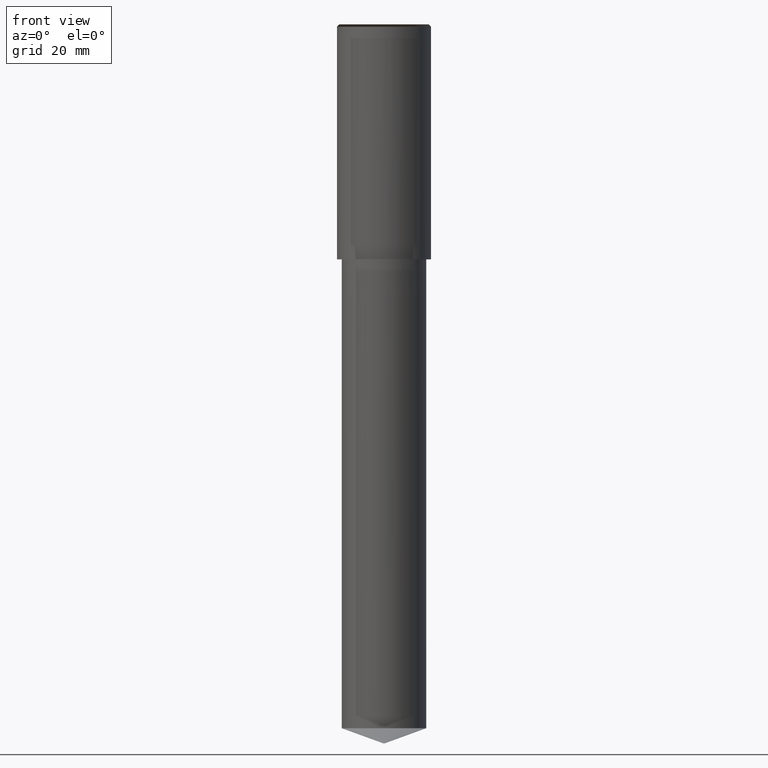
[diagram: clean part render]
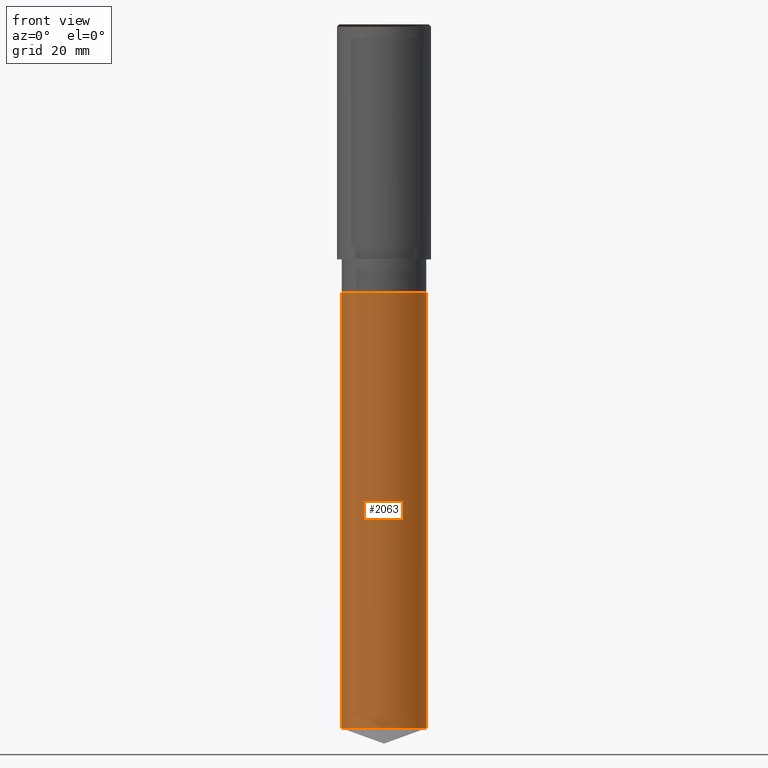
[diagram: same view with one face highlighted and labeled with its STEP entity id]
A machine part, front view. The second image highlights one B-rep face of the part: STEP entity #2063.
In plain terms, the highlighted face is a freeform B-spline surface patch.
Its self-contained STEP definition (entity closure, byte-faithful):
#1913=CARTESIAN_POINT('',(9.0,0.0,-99.724267891604));
#1917=CARTESIAN_POINT('',(-9.0,0.0,-99.724267891604));
#1918=CARTESIAN_POINT('',(9.0,0.0,-7.0));
#1922=CARTESIAN_POINT('',(-9.0,0.0,-7.0));
#1924=CARTESIAN_POINT('',(-9.0,-9.0,-99.724267891604));
#1925=CARTESIAN_POINT('',(0.0,-9.0,-99.724267891604));
#1926=CARTESIAN_POINT('',(9.0,-9.0,-99.724267891604));
#1927=CARTESIAN_POINT('',(-9.0,-9.0,-7.0));
#1928=CARTESIAN_POINT('',(0.0,-9.0,-7.0));
#1929=CARTESIAN_POINT('',(9.0,-9.0,-7.0));
#2044=(
BOUNDED_SURFACE()
B_SPLINE_SURFACE(1,2,(
(#1917,#1924,#1925,#1926,#1913),
(#1922,#1927,#1928,#1929,#1918)
), .UNSPECIFIED.,.F.,.F.,.F.)
B_SPLINE_SURFACE_WITH_KNOTS((2,2),(3,2,3),(
0.0,1.0),(
0.0,0.5,1.0), .UNSPECIFIED.)
GEOMETRIC_REPRESENTATION_ITEM()
RATIONAL_B_SPLINE_SURFACE(((1.0,0.707106781187,1.0,0.707106781187,1.0),
(1.0,0.707106781187,1.0,0.707106781187,1.0)
))
REPRESENTATION_ITEM('')
SURFACE()
);
#2045=(
BOUNDED_CURVE()
B_SPLINE_CURVE(2,(#1913,#1926,#1925,#1924,#1917),.UNSPECIFIED.,.F.,.F.)
B_SPLINE_CURVE_WITH_KNOTS((3,2,3),
(0.0,0.5,1.0),.UNSPECIFIED.)
CURVE()
GEOMETRIC_REPRESENTATION_ITEM()
RATIONAL_B_SPLINE_CURVE((1.0,0.707106781187,1.0,0.707106781187,1.0))
REPRESENTATION_ITEM('')
);
#2046=(
BOUNDED_CURVE()
B_SPLINE_CURVE(1,(#1917,#1922),.UNSPECIFIED.,.F.,.F.)
B_SPLINE_CURVE_WITH_KNOTS((2,2),
(0.0,1.0),.UNSPECIFIED.)
CURVE()
GEOMETRIC_REPRESENTATION_ITEM()
RATIONAL_B_SPLINE_CURVE((1.0,1.0))
REPRESENTATION_ITEM('')
);
#2047=(
BOUNDED_CURVE()
B_SPLINE_CURVE(2,(#1922,#1927,#1928,#1929,#1918),.UNSPECIFIED.,.F.,.F.)
B_SPLINE_CURVE_WITH_KNOTS((3,2,3),
(0.0,0.5,1.0),.UNSPECIFIED.)
CURVE()
GEOMETRIC_REPRESENTATION_ITEM()
RATIONAL_B_SPLINE_CURVE((1.0,0.707106781187,1.0,0.707106781187,1.0))
REPRESENTATION_ITEM('')
);
#2048=(
BOUNDED_CURVE()
B_SPLINE_CURVE(1,(#1918,#1913),.UNSPECIFIED.,.F.,.F.)
B_SPLINE_CURVE_WITH_KNOTS((2,2),
(0.0,1.0),.UNSPECIFIED.)
CURVE()
GEOMETRIC_REPRESENTATION_ITEM()
RATIONAL_B_SPLINE_CURVE((1.0,1.0))
REPRESENTATION_ITEM('')
);
#2049=VERTEX_POINT('',#1913);
#2050=VERTEX_POINT('',#1917);
#2051=VERTEX_POINT('',#1918);
#2052=VERTEX_POINT('',#1922);
#2053=EDGE_CURVE('',#2049,#2050,#2045,.T.);
#2054=EDGE_CURVE('',#2050,#2052,#2046,.T.);
#2055=EDGE_CURVE('',#2052,#2051,#2047,.T.);
#2056=EDGE_CURVE('',#2051,#2049,#2048,.T.);
#2057=ORIENTED_EDGE('',*,*,#2053,.T.);
#2058=ORIENTED_EDGE('',*,*,#2054,.T.);
#2059=ORIENTED_EDGE('',*,*,#2055,.T.);
#2060=ORIENTED_EDGE('',*,*,#2056,.T.);
#2061=EDGE_LOOP('',(#2057,#2058,#2059,#2060));
#2062=FACE_OUTER_BOUND('',#2061,.T.);
#2063=ADVANCED_FACE('',(#2062),#2044,.T.);